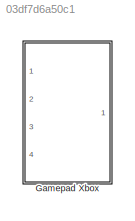
MODEL slx_03df7d6a50c1
KIND library
CONFIG AbsTol = auto
CONFIG EnableMultiTasking = off
CONFIG FixedStep = auto
CONFIG MaxStep = auto
CONFIG MinStep = auto
CONFIG RelTol = 1e-3
CONFIG SampleTimeConstraint = Unconstrained
CONFIG SolverName = VariableStepAuto
CONFIG StartTime = 0.0
CONFIG StopTime = 10.0
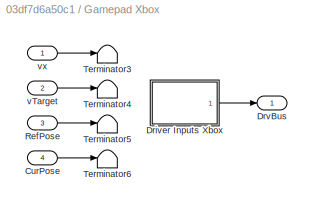
BLOCK [SubSystem] Gamepad Xbox
  Ports = [4, 1]
  RequestExecContextInheritance = off
BLOCK [Inport] Gamepad Xbox/CurPose
  Port = 4
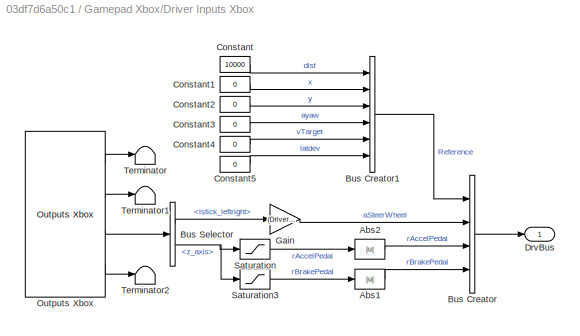
BLOCK [SubSystem] Gamepad Xbox/Driver Inputs Xbox
  Ports = [0, 1]
  RequestExecContextInheritance = off
BLOCK [Abs] Gamepad Xbox/Driver Inputs Xbox/Abs1
  SaturateOnIntegerOverflow = off
  ZeroCross = off
BLOCK [Abs] Gamepad Xbox/Driver Inputs Xbox/Abs2
  SaturateOnIntegerOverflow = off
  ZeroCross = off
BLOCK [BusCreator] Gamepad Xbox/Driver Inputs Xbox/Bus Creator
  DisplayOption = bar
  InheritFromInputs = on
  Inputs = 4
  Ports = [4, 1]
BLOCK [BusCreator] Gamepad Xbox/Driver Inputs Xbox/Bus Creator1
  DisplayOption = bar
  InheritFromInputs = on
  Inputs = 6
  Ports = [6, 1]
BLOCK [BusSelector] Gamepad Xbox/Driver Inputs Xbox/Bus Selector
  OutputSignals = lstick_leftright,z_axis
  Ports = [1, 2]
BLOCK [Constant] Gamepad Xbox/Driver Inputs Xbox/Constant
  Value = 10000
BLOCK [Constant] Gamepad Xbox/Driver Inputs Xbox/Constant1
  Value = 0
BLOCK [Constant] Gamepad Xbox/Driver Inputs Xbox/Constant2
  Value = 0
BLOCK [Constant] Gamepad Xbox/Driver Inputs Xbox/Constant3
  Value = 0
BLOCK [Constant] Gamepad Xbox/Driver Inputs Xbox/Constant4
  Value = 0
BLOCK [Constant] Gamepad Xbox/Driver Inputs Xbox/Constant5
  Value = 0
BLOCK [Outport] Gamepad Xbox/Driver Inputs Xbox/DrvBus
  VectorParamsAs1DForOutWhenUnconnected = off
BLOCK [Gain] Gamepad Xbox/Driver Inputs Xbox/Gain
  Gain = (Driver.Lateral.aMaxSteer.Value/180*pi)*0.95
BLOCK [Reference] Gamepad Xbox/Driver Inputs Xbox/Outputs Xbox  REF=Gamepad_Xbox/Outputs Xbox
  Ports = [0, 4]
  SourceBlock = Gamepad_Xbox/Outputs Xbox
BLOCK [Saturate] Gamepad Xbox/Driver Inputs Xbox/Saturation
  LowerLimit = -1
  UpperLimit = 0
  ZeroCross = off
BLOCK [Saturate] Gamepad Xbox/Driver Inputs Xbox/Saturation3
  LowerLimit = 0
  UpperLimit = 1
  ZeroCross = off
BLOCK [Terminator] Gamepad Xbox/Driver Inputs Xbox/Terminator
BLOCK [Terminator] Gamepad Xbox/Driver Inputs Xbox/Terminator1
BLOCK [Terminator] Gamepad Xbox/Driver Inputs Xbox/Terminator2
BLOCK [Outport] Gamepad Xbox/DrvBus
  VectorParamsAs1DForOutWhenUnconnected = off
BLOCK [Inport] Gamepad Xbox/RefPose
  Port = 3
BLOCK [Terminator] Gamepad Xbox/Terminator3
BLOCK [Terminator] Gamepad Xbox/Terminator4
BLOCK [Terminator] Gamepad Xbox/Terminator5
BLOCK [Terminator] Gamepad Xbox/Terminator6
BLOCK [Inport] Gamepad Xbox/vTarget
  Port = 2
BLOCK [Inport] Gamepad Xbox/vx
LINE Gamepad Xbox/CurPose:1 -> Gamepad Xbox/Terminator6:1
LINE Gamepad Xbox/Driver Inputs Xbox/Abs1:1 -> Gamepad Xbox/Driver Inputs Xbox/Bus Creator:4
LINE Gamepad Xbox/Driver Inputs Xbox/Abs2:1 -> Gamepad Xbox/Driver Inputs Xbox/Bus Creator:3
LINE Gamepad Xbox/Driver Inputs Xbox/Bus Creator1:1 -> Gamepad Xbox/Driver Inputs Xbox/Bus Creator:1
LINE Gamepad Xbox/Driver Inputs Xbox/Bus Creator:1 -> Gamepad Xbox/Driver Inputs Xbox/DrvBus:1
LINE Gamepad Xbox/Driver Inputs Xbox/Bus Selector:1 -> Gamepad Xbox/Driver Inputs Xbox/Gain:1
NET Gamepad Xbox/Driver Inputs Xbox/Bus Selector:2 -> Gamepad Xbox/Driver Inputs Xbox/Saturation3:1, Gamepad Xbox/Driver Inputs Xbox/Saturation:1
LINE Gamepad Xbox/Driver Inputs Xbox/Constant1:1 -> Gamepad Xbox/Driver Inputs Xbox/Bus Creator1:2
LINE Gamepad Xbox/Driver Inputs Xbox/Constant2:1 -> Gamepad Xbox/Driver Inputs Xbox/Bus Creator1:3
LINE Gamepad Xbox/Driver Inputs Xbox/Constant3:1 -> Gamepad Xbox/Driver Inputs Xbox/Bus Creator1:4
LINE Gamepad Xbox/Driver Inputs Xbox/Constant4:1 -> Gamepad Xbox/Driver Inputs Xbox/Bus Creator1:5
LINE Gamepad Xbox/Driver Inputs Xbox/Constant5:1 -> Gamepad Xbox/Driver Inputs Xbox/Bus Creator1:6
LINE Gamepad Xbox/Driver Inputs Xbox/Constant:1 -> Gamepad Xbox/Driver Inputs Xbox/Bus Creator1:1
LINE Gamepad Xbox/Driver Inputs Xbox/Gain:1 -> Gamepad Xbox/Driver Inputs Xbox/Bus Creator:2
LINE Gamepad Xbox/Driver Inputs Xbox/Outputs Xbox:1 -> Gamepad Xbox/Driver Inputs Xbox/Terminator:1
LINE Gamepad Xbox/Driver Inputs Xbox/Outputs Xbox:2 -> Gamepad Xbox/Driver Inputs Xbox/Terminator1:1
LINE Gamepad Xbox/Driver Inputs Xbox/Outputs Xbox:3 -> Gamepad Xbox/Driver Inputs Xbox/Bus Selector:1
LINE Gamepad Xbox/Driver Inputs Xbox/Outputs Xbox:4 -> Gamepad Xbox/Driver Inputs Xbox/Terminator2:1
LINE Gamepad Xbox/Driver Inputs Xbox/Saturation3:1 -> Gamepad Xbox/Driver Inputs Xbox/Abs1:1
LINE Gamepad Xbox/Driver Inputs Xbox/Saturation:1 -> Gamepad Xbox/Driver Inputs Xbox/Abs2:1
LINE Gamepad Xbox/Driver Inputs Xbox:1 -> Gamepad Xbox/DrvBus:1
LINE Gamepad Xbox/RefPose:1 -> Gamepad Xbox/Terminator5:1
LINE Gamepad Xbox/vTarget:1 -> Gamepad Xbox/Terminator4:1
LINE Gamepad Xbox/vx:1 -> Gamepad Xbox/Terminator3:1
note: NET lines group one-source signal fan-out (src -> all destinations, sorted); 1:1 wires keep LINE
